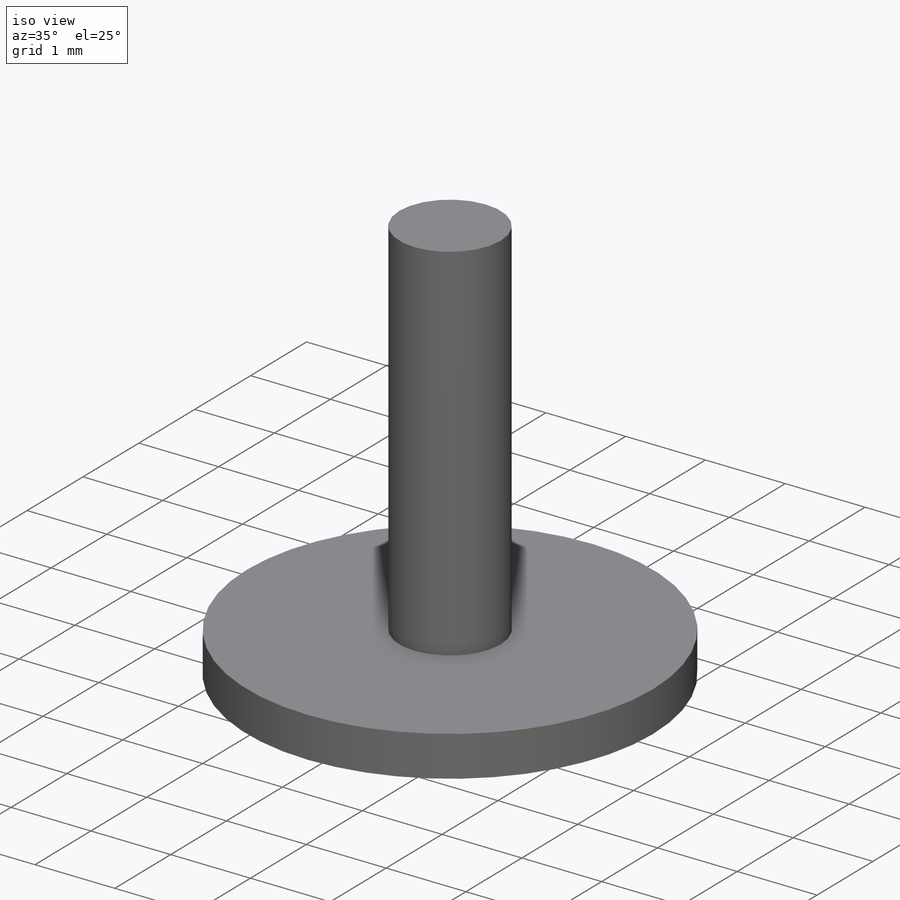
[diagram: iso view]
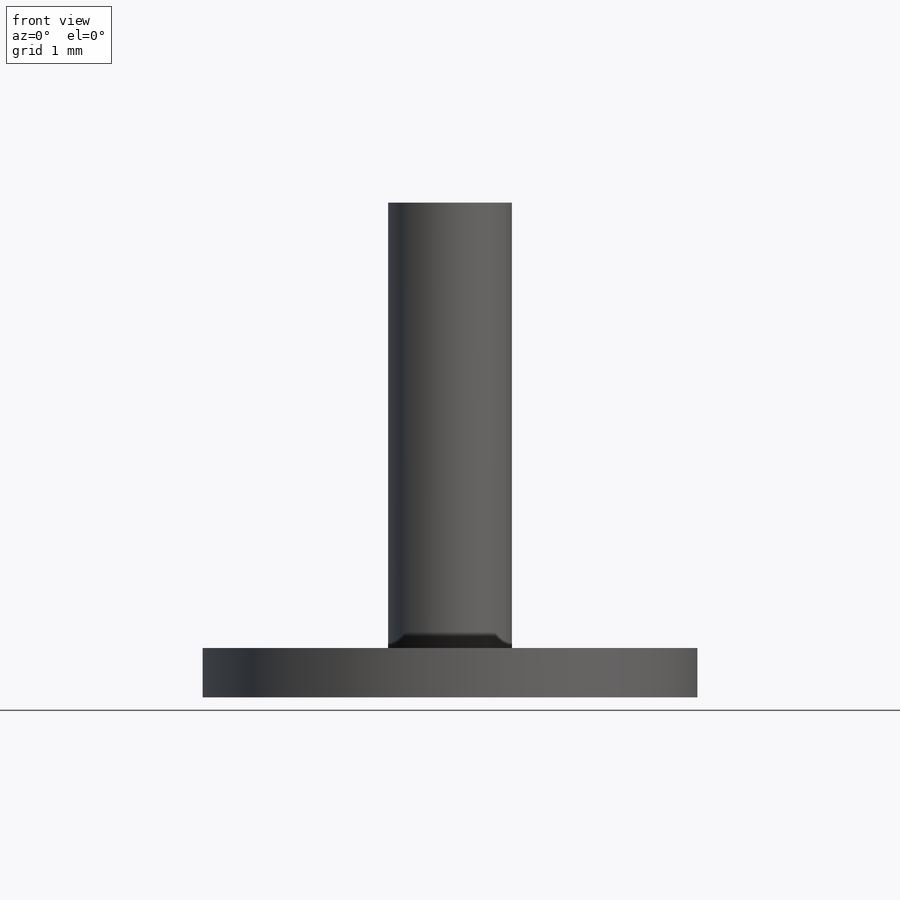
[diagram: front view]
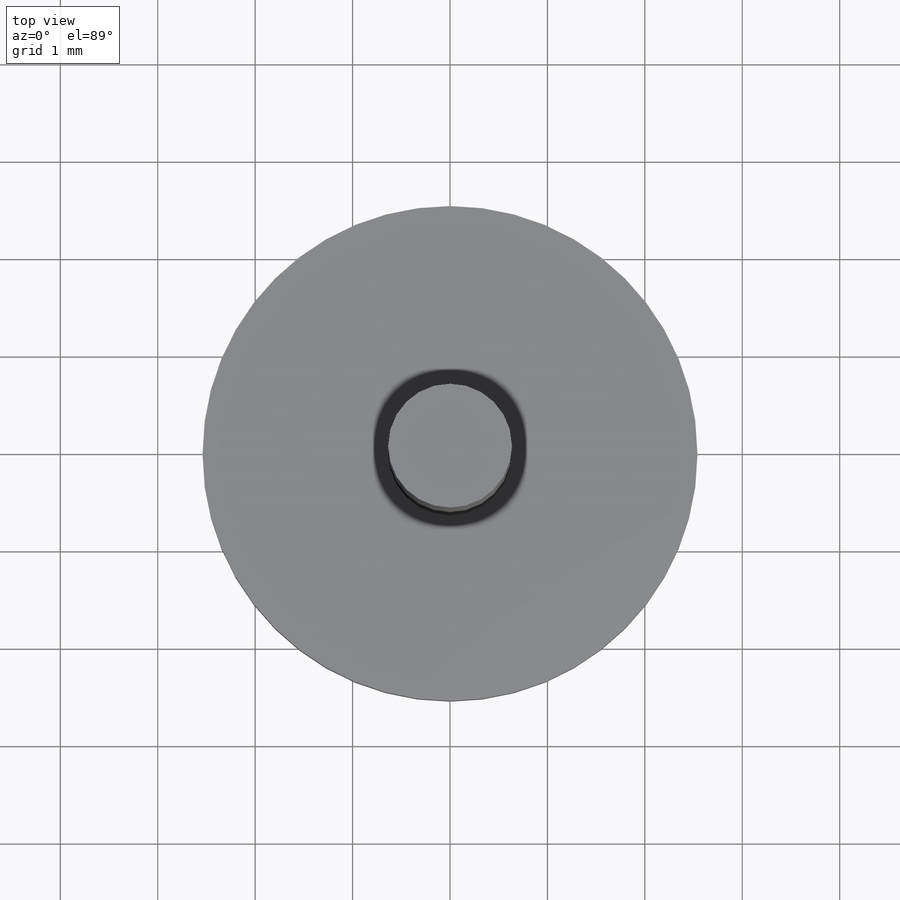
[diagram: top view]
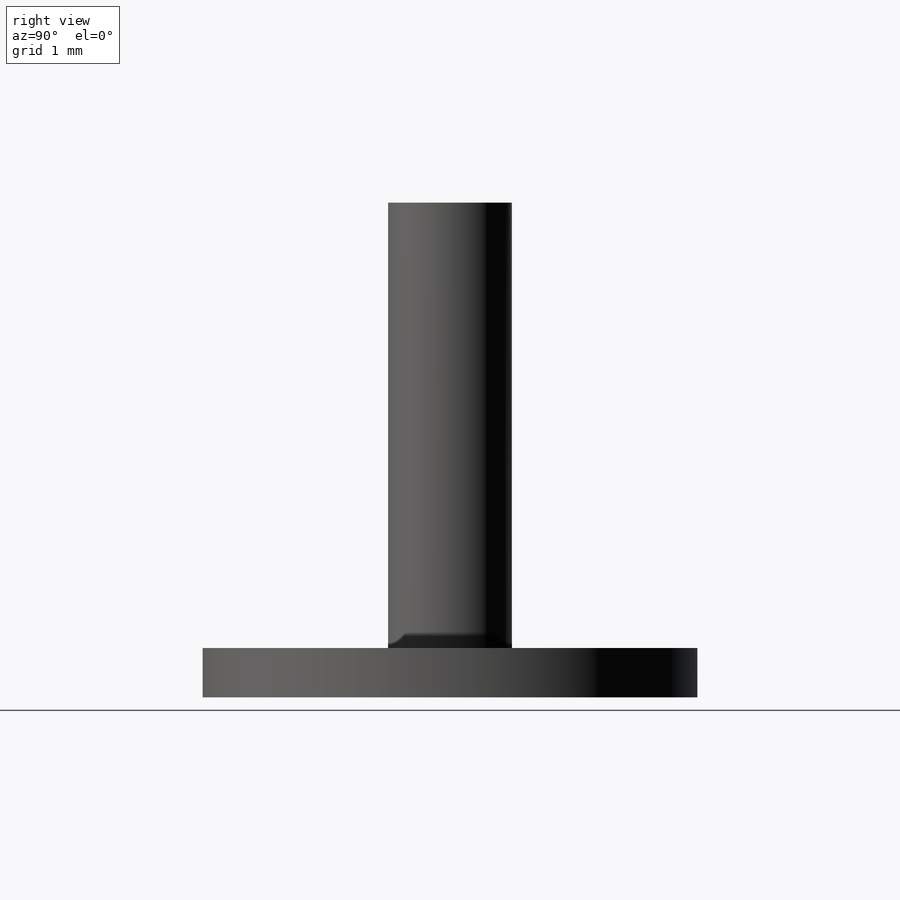
[diagram: right view]
SOLIDWORKS PART (.sldprt)
format: sldprt  version: not decoded by parser v0  size: 228,352 bytes
history: native  units: mm
features: sketch x6, extrude x2, material x1 (+12 scaffold rows collapsed)
feature tree (21):
  scaffold x12  (default folders/planes/origin — collapsed)
  material  "Material <not specified>"
  sketch  "Center Shaft"  dims[D1=~10.841098mm]
  sketch  "Top Landing"  dims[D1=~1.825834mm]
  extrude  "Center Shaft extr"  Depth=5.08mm
  extrude  "Top landing extr"  Depth=0.508mm
  sketch  "Alignment lines"  dims[D1=157.5deg]
  sketch  "Sketch12"  dims[D1=0.9398mm D3=0.9398mm D2=8.0]
  sketch  "Sketch13"  dims[c1.D1=0.635mm c1.D2=~0.460082mm c1.D3=~1.406642mm c2.D2=12.0]
  sketch  "Sketch14"  dims[D1=0.4572mm D3=~1.813322mm D2=16.0]
decode coverage: 8 of 8 modeling features carry decoded parameters
note: ~ marks probable driven/reference dimensions
note: suppression state not decoded; provenance and decode notes live in map.json
